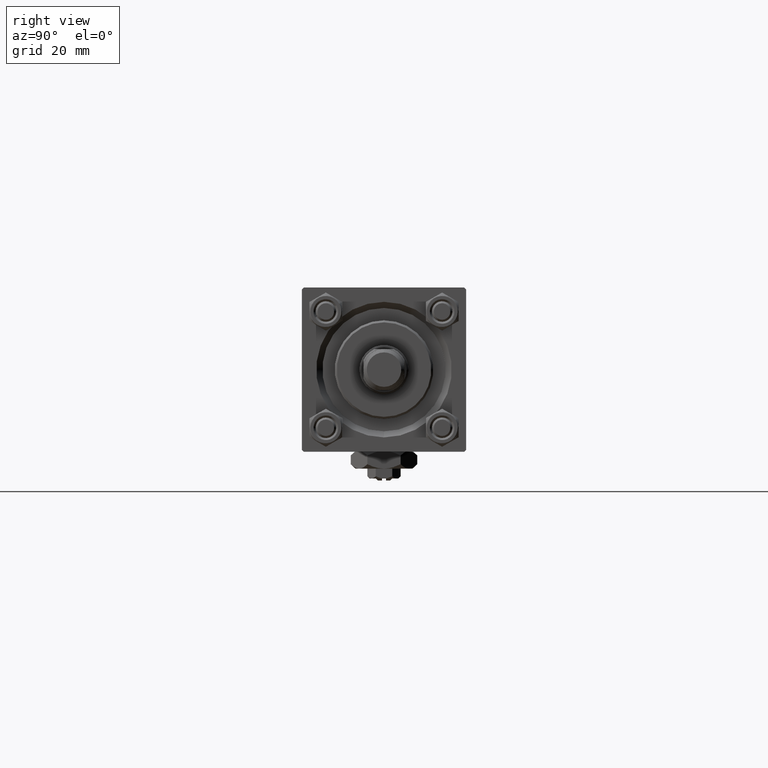
[diagram: clean part render]
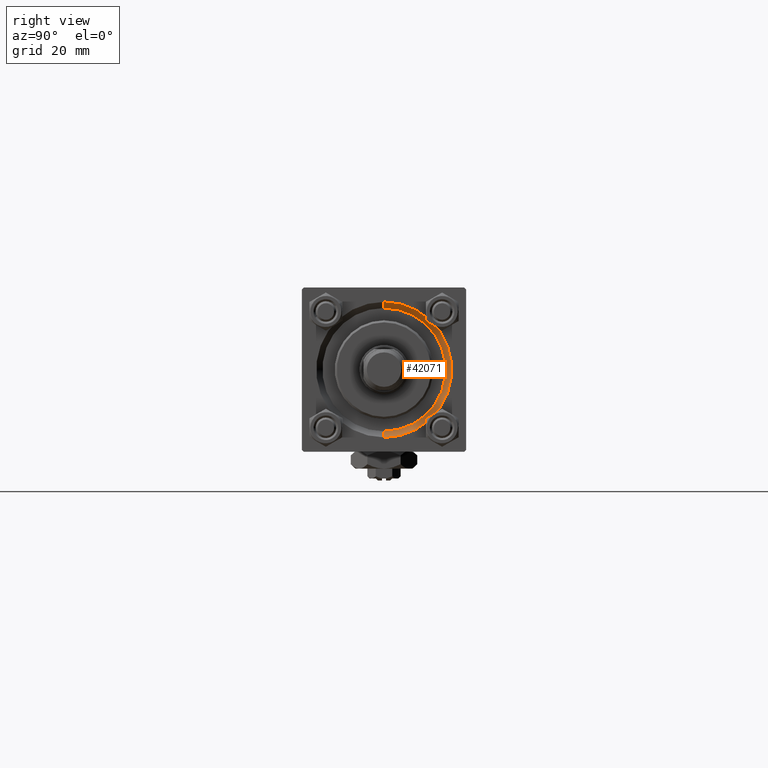
[diagram: same view with one face highlighted and labeled with its STEP entity id]
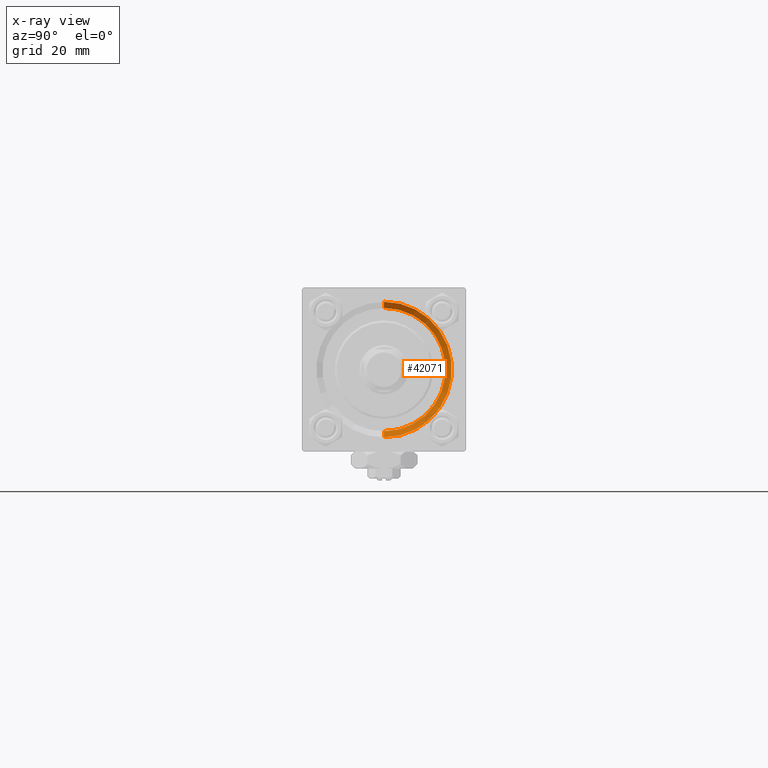
[diagram: x-ray of the same camera — body ghosted, the highlighted face saturated]
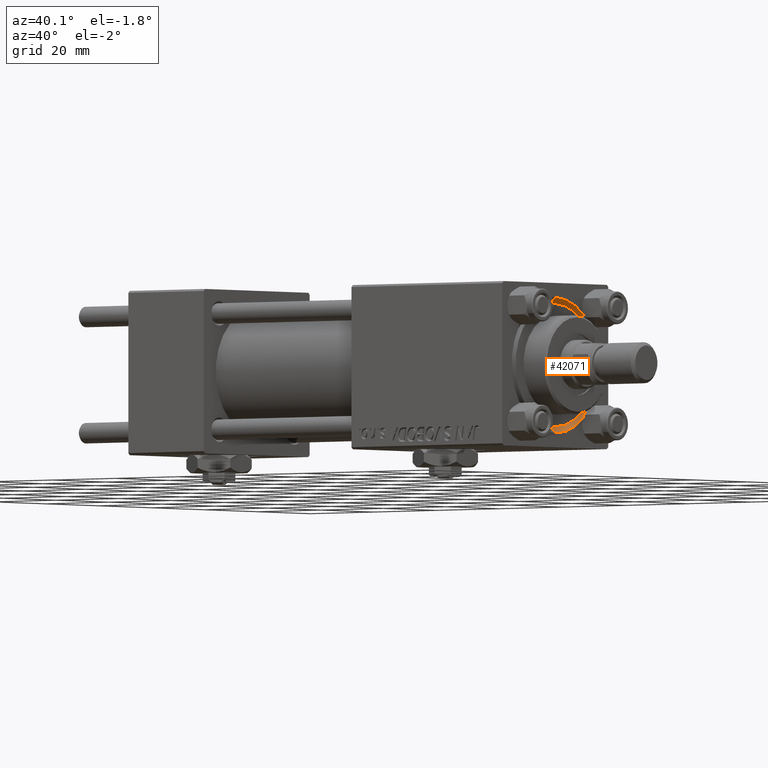
[diagram: same view with one face highlighted and labeled with its STEP entity id]
A machine part, right view. The second image highlights one B-rep face of the part: STEP entity #42071.
The next image is the same camera in x-ray: the body ghosted, the highlighted face saturated — about 0% of this face is hidden behind the body in this view.
A second angle (auxiliary view) of the same face is appended — the face is thin or edge-on in the first view.
In plain terms, the highlighted conical surface has half-angle 45 deg.
Its self-contained STEP definition (entity closure, byte-faithful):
#102 = VERTEX_POINT ( 'NONE', #32760 ) ;
#252 = VECTOR ( 'NONE', #31511, 1000.000000000000114 ) ;
#959 = CARTESIAN_POINT ( 'NONE',  ( 119.0000000000000142, 0.000000000000000000, 0.000000000000000000 ) ) ;
#968 = ORIENTED_EDGE ( 'NONE', *, *, #14434, .F. ) ;
#1773 = ORIENTED_EDGE ( 'NONE', *, *, #2281, .F. ) ;
#2173 = LINE ( 'NONE', #26521, #252 ) ;
#2203 = CIRCLE ( 'NONE', #36823, 16.50000000000001421 ) ;
#2281 = EDGE_CURVE ( 'NONE', #26558, #102, #2203, .T. ) ;
#3342 = DIRECTION ( 'NONE',  ( 1.000000000000000000, 0.000000000000000000, 0.000000000000000000 ) ) ;
#4349 = CARTESIAN_POINT ( 'NONE',  ( 117.5000000000000000, 1.836970198721029589E-15, 15.00000000000000000 ) ) ;
#4935 = LINE ( 'NONE', #9155, #28936 ) ;
#4943 = VERTEX_POINT ( 'NONE', #46425 ) ;
#5449 = DIRECTION ( 'NONE',  ( 0.7071067811865474617, 8.659560562354932858E-17, 0.7071067811865474617 ) ) ;
#8491 = CONICAL_SURFACE ( 'NONE', #38029, 15.00000000000000000, 0.7853981633974482790 ) ;
#8541 = EDGE_CURVE ( 'NONE', #4943, #102, #2173, .T. ) ;
#9155 = CARTESIAN_POINT ( 'NONE',  ( 117.5000000000000000, 1.836970198721029589E-15, 15.00000000000000000 ) ) ;
#10503 = CARTESIAN_POINT ( 'NONE',  ( 117.5000000000000000, 0.000000000000000000, 0.000000000000000000 ) ) ;
#14434 = EDGE_CURVE ( 'NONE', #4943, #15909, #44196, .T. ) ;
#15116 = CARTESIAN_POINT ( 'NONE',  ( 117.5000000000000000, 0.000000000000000000, 0.000000000000000000 ) ) ;
#15909 = VERTEX_POINT ( 'NONE', #4349 ) ;
#22252 = CARTESIAN_POINT ( 'NONE',  ( 119.0000000000000142, 2.020667218593134678E-15, 16.50000000000001421 ) ) ;
#22523 = DIRECTION ( 'NONE',  ( 0.000000000000000000, 0.000000000000000000, 1.000000000000000000 ) ) ;
#22928 = DIRECTION ( 'NONE',  ( 0.000000000000000000, 0.000000000000000000, -1.000000000000000000 ) ) ;
#26521 = CARTESIAN_POINT ( 'NONE',  ( 117.5000000000000000, 0.000000000000000000, -15.00000000000000000 ) ) ;
#26558 = VERTEX_POINT ( 'NONE', #22252 ) ;
#26902 = EDGE_LOOP ( 'NONE', ( #31157, #968, #42856, #1773 ) ) ;
#28492 = DIRECTION ( 'NONE',  ( -1.000000000000000000, -0.000000000000000000, -0.000000000000000000 ) ) ;
#28936 = VECTOR ( 'NONE', #5449, 1000.000000000000114 ) ;
#31157 = ORIENTED_EDGE ( 'NONE', *, *, #47179, .F. ) ;
#31511 = DIRECTION ( 'NONE',  ( 0.7071067811865474617, 0.000000000000000000, -0.7071067811865474617 ) ) ;
#32760 = CARTESIAN_POINT ( 'NONE',  ( 119.0000000000000142, 0.000000000000000000, -16.50000000000001421 ) ) ;
#34927 = AXIS2_PLACEMENT_3D ( 'NONE', #15116, #50778, #22523 ) ;
#36823 = AXIS2_PLACEMENT_3D ( 'NONE', #959, #28492, #41147 ) ;
#38029 = AXIS2_PLACEMENT_3D ( 'NONE', #10503, #3342, #22928 ) ;
#41147 = DIRECTION ( 'NONE',  ( 0.000000000000000000, 0.000000000000000000, 1.000000000000000000 ) ) ;
#42071 = ADVANCED_FACE ( 'NONE', ( #46965 ), #8491, .F. ) ;
#42856 = ORIENTED_EDGE ( 'NONE', *, *, #8541, .T. ) ;
#44196 = CIRCLE ( 'NONE', #34927, 15.00000000000000000 ) ;
#46425 = CARTESIAN_POINT ( 'NONE',  ( 117.5000000000000000, 0.000000000000000000, -15.00000000000000000 ) ) ;
#46965 = FACE_OUTER_BOUND ( 'NONE', #26902, .T. ) ;
#47179 = EDGE_CURVE ( 'NONE', #15909, #26558, #4935, .T. ) ;
#50778 = DIRECTION ( 'NONE',  ( 1.000000000000000000, 0.000000000000000000, 0.000000000000000000 ) ) ;